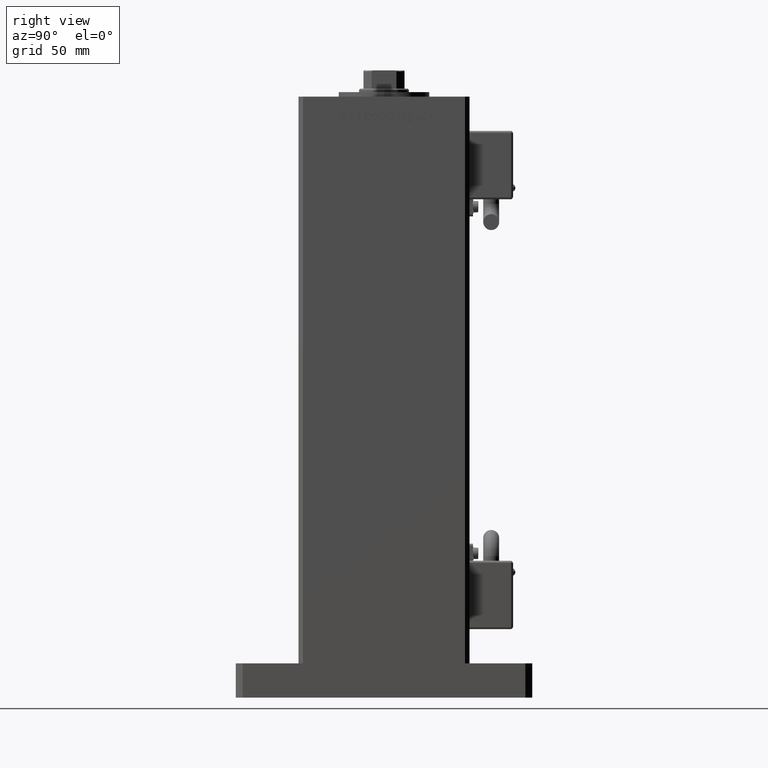
[diagram: clean part render]
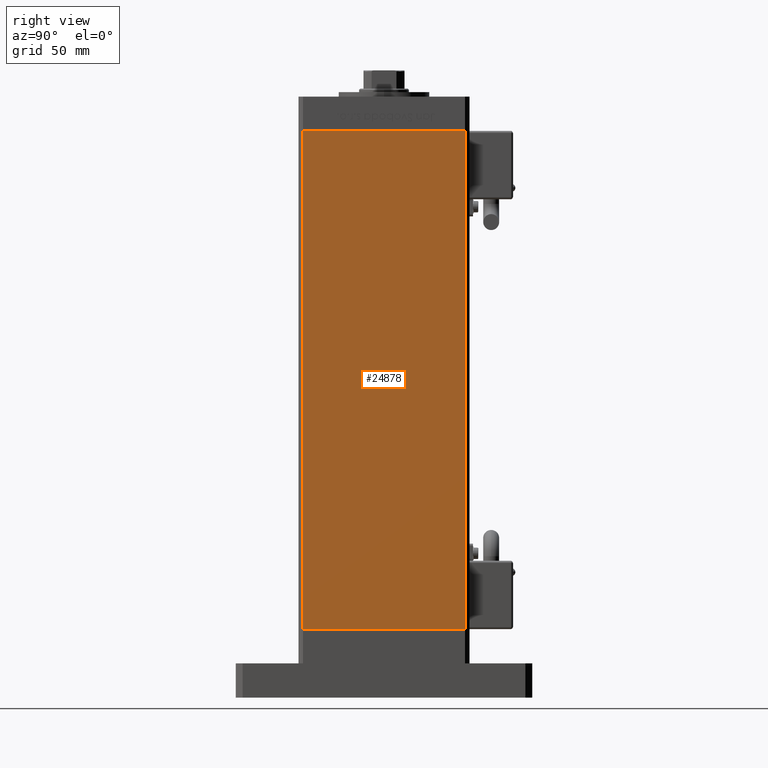
[diagram: same view with one face highlighted and labeled with its STEP entity id]
A machine part, right view. The second image highlights one B-rep face of the part: STEP entity #24878.
In plain terms, the highlighted planar face has unit normal (1, -0, 0).
Its self-contained STEP definition (entity closure, byte-faithful):
#1727 = DIRECTION ( 'NONE',  ( 2.931927001650941360E-16, 1.000000000000000000, 0.000000000000000000 ) ) ;
#2372 = EDGE_CURVE ( 'NONE', #36467, #26971, #7153, .T. ) ;
#4482 = CARTESIAN_POINT ( 'NONE',  ( 42.50000000000000711, 35.50000000000001421, 0.000000000000000000 ) ) ;
#4971 = EDGE_CURVE ( 'NONE', #46542, #36467, #15408, .T. ) ;
#6215 = CARTESIAN_POINT ( 'NONE',  ( 42.50000000000000711, 35.50000000000001421, 218.5000000000000000 ) ) ;
#6272 = FACE_OUTER_BOUND ( 'NONE', #29810, .T. ) ;
#6490 = VECTOR ( 'NONE', #9162, 1000.000000000000000 ) ;
#6873 = DIRECTION ( 'NONE',  ( -2.931927001650941360E-16, -1.000000000000000000, 0.000000000000000000 ) ) ;
#7153 = LINE ( 'NONE', #42452, #25545 ) ;
#9162 = DIRECTION ( 'NONE',  ( -0.000000000000000000, -0.000000000000000000, -1.000000000000000000 ) ) ;
#13732 = CARTESIAN_POINT ( 'NONE',  ( 42.50000000000000711, 35.50000000000001421, 0.000000000000000000 ) ) ;
#15408 = LINE ( 'NONE', #50719, #46155 ) ;
#17550 = LINE ( 'NONE', #4482, #24027 ) ;
#19072 = PLANE ( 'NONE',  #28502 ) ;
#19842 = EDGE_CURVE ( 'NONE', #46542, #31938, #48462, .T. ) ;
#23633 = CARTESIAN_POINT ( 'NONE',  ( 42.50000000000000711, 35.50000000000001421, 218.5000000000000000 ) ) ;
#24027 = VECTOR ( 'NONE', #34080, 1000.000000000000000 ) ;
#24878 = ADVANCED_FACE ( 'NONE', ( #6272 ), #19072, .T. ) ;
#25545 = VECTOR ( 'NONE', #55009, 1000.000000000000000 ) ;
#26971 = VERTEX_POINT ( 'NONE', #55546 ) ;
#27067 = DIRECTION ( 'NONE',  ( 1.000000000000000000, -2.931927001650941360E-16, 0.000000000000000000 ) ) ;
#28502 = AXIS2_PLACEMENT_3D ( 'NONE', #23633, #27067, #1727 ) ;
#29810 = EDGE_LOOP ( 'NONE', ( #55424, #33074, #42500, #55972 ) ) ;
#31938 = VERTEX_POINT ( 'NONE', #13732 ) ;
#33074 = ORIENTED_EDGE ( 'NONE', *, *, #19842, .F. ) ;
#34080 = DIRECTION ( 'NONE',  ( -2.931927001650941360E-16, -1.000000000000000000, 0.000000000000000000 ) ) ;
#36467 = VERTEX_POINT ( 'NONE', #40702 ) ;
#39903 = CARTESIAN_POINT ( 'NONE',  ( 42.50000000000000711, 35.50000000000001421, 218.5000000000000000 ) ) ;
#40702 = CARTESIAN_POINT ( 'NONE',  ( 42.49999999999998579, -35.50000000000000711, 218.5000000000000000 ) ) ;
#42452 = CARTESIAN_POINT ( 'NONE',  ( 42.49999999999998579, -35.50000000000000711, 218.5000000000000000 ) ) ;
#42500 = ORIENTED_EDGE ( 'NONE', *, *, #4971, .T. ) ;
#46155 = VECTOR ( 'NONE', #6873, 1000.000000000000000 ) ;
#46542 = VERTEX_POINT ( 'NONE', #6215 ) ;
#48462 = LINE ( 'NONE', #39903, #6490 ) ;
#50719 = CARTESIAN_POINT ( 'NONE',  ( 42.50000000000000711, 35.50000000000001421, 218.5000000000000000 ) ) ;
#55009 = DIRECTION ( 'NONE',  ( -0.000000000000000000, -0.000000000000000000, -1.000000000000000000 ) ) ;
#55424 = ORIENTED_EDGE ( 'NONE', *, *, #55844, .F. ) ;
#55546 = CARTESIAN_POINT ( 'NONE',  ( 42.49999999999998579, -35.50000000000000711, 0.000000000000000000 ) ) ;
#55844 = EDGE_CURVE ( 'NONE', #31938, #26971, #17550, .T. ) ;
#55972 = ORIENTED_EDGE ( 'NONE', *, *, #2372, .T. ) ;